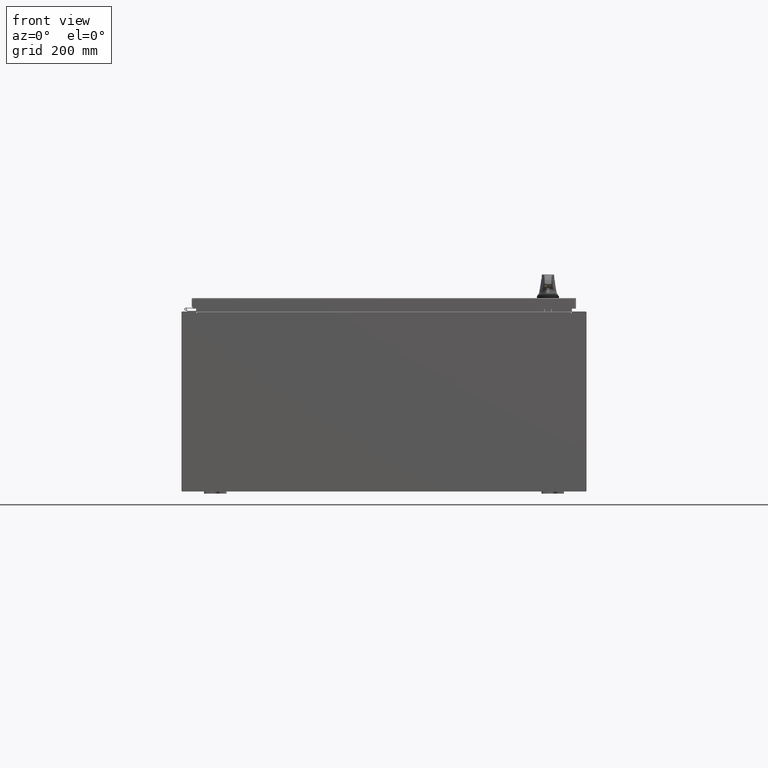
[diagram: clean part render]
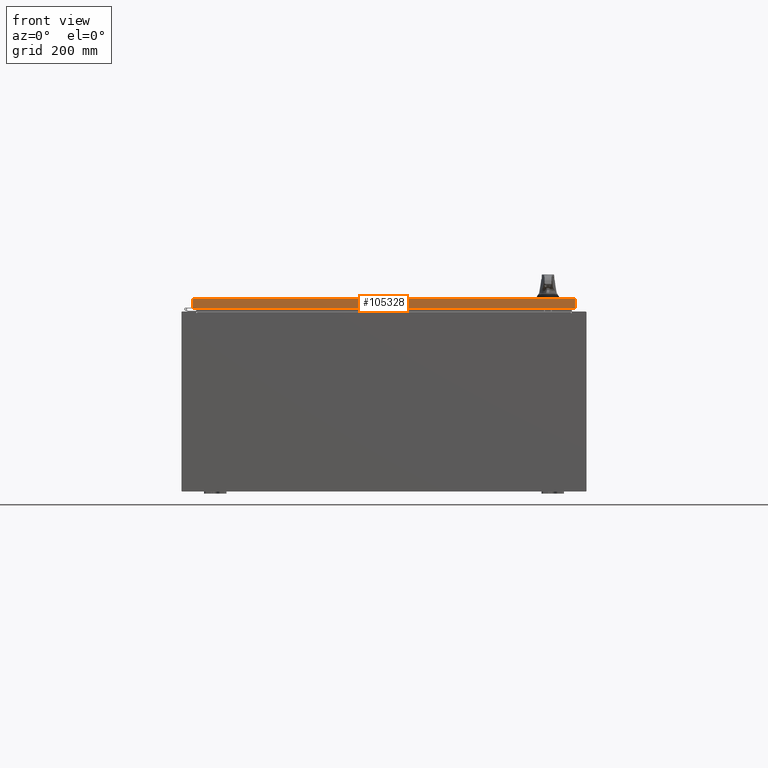
[diagram: same view with one face highlighted and labeled with its STEP entity id]
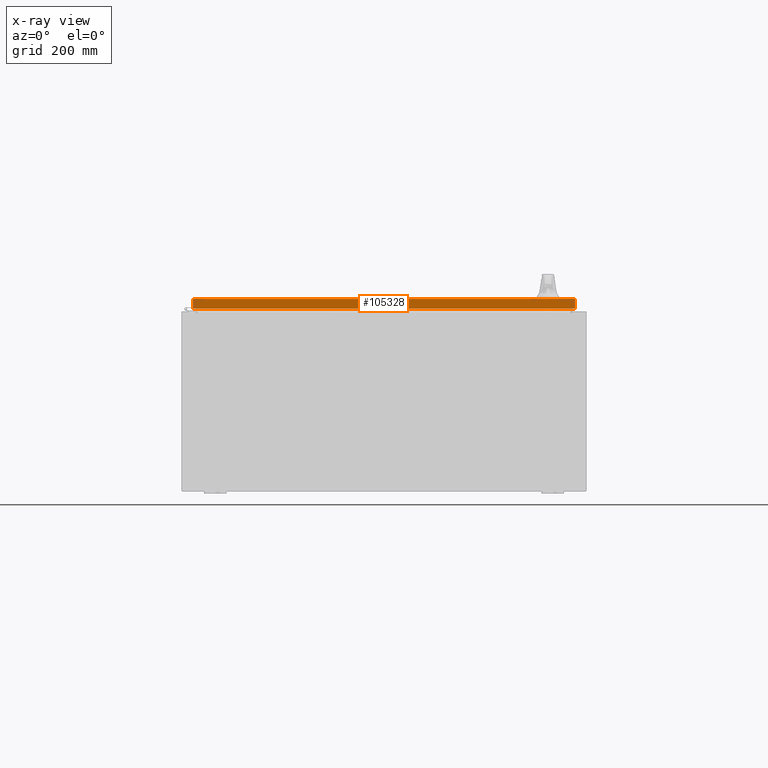
[diagram: x-ray of the same camera — body ghosted, the highlighted face saturated]
A machine part, front view. The second image highlights one B-rep face of the part: STEP entity #105328.
The next image is the same camera in x-ray: the body ghosted, the highlighted face saturated — about 0% of this face is hidden behind the body in this view.
In plain terms, the highlighted planar face has unit normal (-0, 1, -0).
Its self-contained STEP definition (entity closure, byte-faithful):
#9894 = DIRECTION ( 'NONE',  ( -6.481495528880676900E-031, 1.000000000000000000, -5.064839849203732200E-015 ) ) ;
#10911 = LINE ( 'NONE', #63729, #35175 ) ;
#22194 = EDGE_CURVE ( 'NONE', #128239, #47866, #134170, .T. ) ;
#29227 = CARTESIAN_POINT ( 'NONE',  ( 17.07799999999999900, -23.09400000000000100, -0.08769999999999550400 ) ) ;
#32798 = LINE ( 'NONE', #117365, #112289 ) ;
#32879 = DIRECTION ( 'NONE',  ( -1.000000000000000000, 8.758115402030108600E-047, 1.279703943630056800E-016 ) ) ;
#35175 = VECTOR ( 'NONE', #32879, 39.37007874015748100 ) ;
#44327 = CARTESIAN_POINT ( 'NONE',  ( 16.98915786437626700, -23.09400000000000100, -0.07469999999999962800 ) ) ;
#45676 = VERTEX_POINT ( 'NONE', #114531 ) ;
#47866 = VERTEX_POINT ( 'NONE', #57125 ) ;
#48206 = ORIENTED_EDGE ( 'NONE', *, *, #22194, .F. ) ;
#49672 = DIRECTION ( 'NONE',  ( 1.000000000000000000, 6.481495528880677800E-031, -3.349804276043092000E-045 ) ) ;
#54956 = EDGE_LOOP ( 'NONE', ( #48206, #112847, #62785, #112780 ) ) ;
#57125 = CARTESIAN_POINT ( 'NONE',  ( 16.98915786437626700, -23.09400000000000100, -0.08769999999999550400 ) ) ;
#57921 = LINE ( 'NONE', #44327, #61191 ) ;
#61191 = VECTOR ( 'NONE', #127290, 39.37007874015748100 ) ;
#62785 = ORIENTED_EDGE ( 'NONE', *, *, #117697, .F. ) ;
#63729 = CARTESIAN_POINT ( 'NONE',  ( 17.07799999999999900, -23.09400000000000500, -0.9376999999999997600 ) ) ;
#64561 = EDGE_CURVE ( 'NONE', #128239, #113033, #32798, .T. ) ;
#65943 = CARTESIAN_POINT ( 'NONE',  ( -16.98915786437626700, -23.09400000000000500, -0.9376999999999954300 ) ) ;
#70635 = CARTESIAN_POINT ( 'NONE',  ( -16.98915786437626700, -23.09400000000000100, -0.08769999999999550400 ) ) ;
#72061 = EDGE_CURVE ( 'NONE', #47866, #45676, #57921, .T. ) ;
#79004 = VECTOR ( 'NONE', #49672, 39.37007874015748100 ) ;
#82422 = DIRECTION ( 'NONE',  ( 0.0000000000000000000, 5.064839849203732200E-015, 1.000000000000000000 ) ) ;
#84884 = AXIS2_PLACEMENT_3D ( 'NONE', #113209, #9894, #82422 ) ;
#92402 = PLANE ( 'NONE',  #84884 ) ;
#105328 = ADVANCED_FACE ( 'NONE', ( #130606 ), #92402, .F. ) ;
#112289 = VECTOR ( 'NONE', #127787, 39.37007874015748100 ) ;
#112780 = ORIENTED_EDGE ( 'NONE', *, *, #72061, .F. ) ;
#112847 = ORIENTED_EDGE ( 'NONE', *, *, #64561, .T. ) ;
#113033 = VERTEX_POINT ( 'NONE', #65943 ) ;
#113209 = CARTESIAN_POINT ( 'NONE',  ( 1.496836577439703600E-029, -23.09400000000000100, 1.172282251335225800E-013 ) ) ;
#114531 = CARTESIAN_POINT ( 'NONE',  ( 16.98915786437626700, -23.09400000000000500, -0.9376999999999997600 ) ) ;
#117365 = CARTESIAN_POINT ( 'NONE',  ( -16.98915786437627100, -23.09400000000000100, 1.172282251335225800E-013 ) ) ;
#117697 = EDGE_CURVE ( 'NONE', #45676, #113033, #10911, .T. ) ;
#127290 = DIRECTION ( 'NONE',  ( -0.0000000000000000000, -5.064839849203732200E-015, -1.000000000000000000 ) ) ;
#127787 = DIRECTION ( 'NONE',  ( 0.0000000000000000000, -5.064839849203732200E-015, -1.000000000000000000 ) ) ;
#128239 = VERTEX_POINT ( 'NONE', #70635 ) ;
#130606 = FACE_OUTER_BOUND ( 'NONE', #54956, .T. ) ;
#134170 = LINE ( 'NONE', #29227, #79004 ) ;